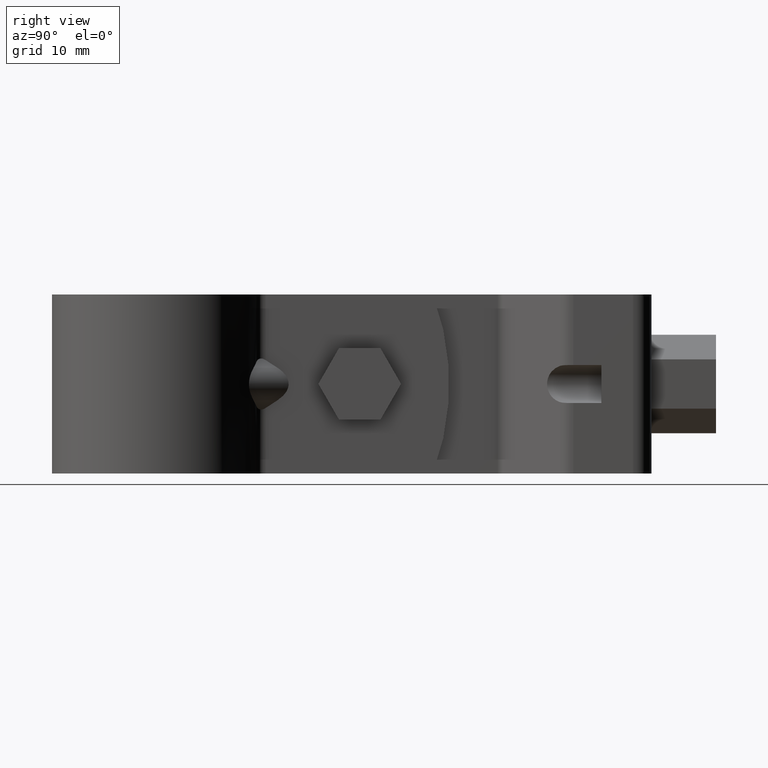
[diagram: clean part render]
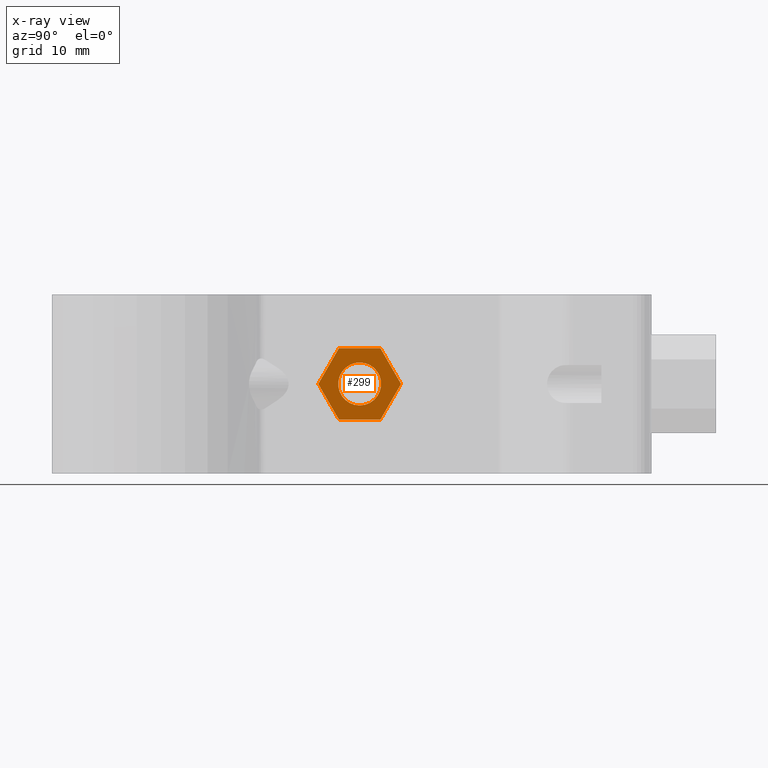
[diagram: x-ray — body ghosted, one internal face saturated and labeled with its STEP entity id]
A machine part, right view, then the same camera in x-ray: the body is ghosted and one INTERNAL B-rep face — a face not visible from any outside direction — is saturated and labeled: STEP entity #299.
In plain terms, the highlighted planar face has unit normal (-1, 0, 0).
Its self-contained STEP definition (entity closure, byte-faithful):
#299 = ADVANCED_FACE( '', ( #460, #461 ), #462, .T. );
#460 = FACE_OUTER_BOUND( '', #732, .T. );
#461 = FACE_BOUND( '', #733, .T. );
#462 = PLANE( '', #734 );
#732 = EDGE_LOOP( '', ( #1206, #1207, #1208, #1209, #1210, #1211 ) );
#733 = EDGE_LOOP( '', ( #1212 ) );
#734 = AXIS2_PLACEMENT_3D( '', #1213, #1214, #1215 );
#1206 = ORIENTED_EDGE( '', *, *, #2022, .F. );
#1207 = ORIENTED_EDGE( '', *, *, #2023, .F. );
#1208 = ORIENTED_EDGE( '', *, *, #2024, .F. );
#1209 = ORIENTED_EDGE( '', *, *, #2025, .F. );
#1210 = ORIENTED_EDGE( '', *, *, #2026, .F. );
#1211 = ORIENTED_EDGE( '', *, *, #2027, .F. );
#1212 = ORIENTED_EDGE( '', *, *, #2028, .T. );
#1213 = CARTESIAN_POINT( '', ( 5.10000000000000, 19.4027139264324, -5.00000000000000 ) );
#1214 = DIRECTION( '', ( -1.00000000000000, 6.06692130572647E-017, 0.000000000000000 ) );
#1215 = DIRECTION( '', ( 0.000000000000000, 0.000000000000000, 1.00000000000000 ) );
#2022 = EDGE_CURVE( '', #2399, #2400, #2401, .T. );
#2023 = EDGE_CURVE( '', #2402, #2399, #2403, .T. );
#2024 = EDGE_CURVE( '', #2404, #2402, #2405, .T. );
#2025 = EDGE_CURVE( '', #2406, #2404, #2407, .T. );
#2026 = EDGE_CURVE( '', #2408, #2406, #2409, .T. );
#2027 = EDGE_CURVE( '', #2400, #2408, #2410, .T. );
#2028 = EDGE_CURVE( '', #2411, #2411, #2412, .F. );
#2399 = VERTEX_POINT( '', #3045 );
#2400 = VERTEX_POINT( '', #3046 );
#2401 = LINE( '', #3047, #3048 );
#2402 = VERTEX_POINT( '', #3049 );
#2403 = LINE( '', #3050, #3051 );
#2404 = VERTEX_POINT( '', #3052 );
#2405 = LINE( '', #3053, #3054 );
#2406 = VERTEX_POINT( '', #3055 );
#2407 = LINE( '', #3056, #3057 );
#2408 = VERTEX_POINT( '', #3058 );
#2409 = LINE( '', #3059, #3060 );
#2410 = LINE( '', #3061, #3062 );
#2411 = VERTEX_POINT( '', #3063 );
#2412 = CIRCLE( '', #3064, 3.00000000000000 );
#3045 = CARTESIAN_POINT( '', ( 5.10000000000000, 25.1762166183287, -5.00000000000000 ) );
#3046 = CARTESIAN_POINT( '', ( 5.10000000000000, 30.9497193102250, -5.00000000000000 ) );
#3047 = CARTESIAN_POINT( '', ( 5.10000000000000, 25.1762166183287, -5.00000000000000 ) );
#3048 = VECTOR( '', #3839, 1000.00000000000 );
#3049 = CARTESIAN_POINT( '', ( 5.10000000000000, 22.2894652723806, -8.67361737988404E-016 ) );
#3050 = CARTESIAN_POINT( '', ( 5.10000000000000, 22.2894652723806, 1.93178474057610E-016 ) );
#3051 = VECTOR( '', #3840, 1000.00000000000 );
#3052 = CARTESIAN_POINT( '', ( 5.10000000000000, 25.1762166183287, 5.00000000000000 ) );
#3053 = CARTESIAN_POINT( '', ( 5.10000000000000, 25.1762166183287, 5.00000000000000 ) );
#3054 = VECTOR( '', #3841, 1000.00000000000 );
#3055 = CARTESIAN_POINT( '', ( 5.10000000000000, 30.9497193102250, 5.00000000000000 ) );
#3056 = CARTESIAN_POINT( '', ( 5.10000000000000, 30.9497193102250, 5.00000000000000 ) );
#3057 = VECTOR( '', #3842, 1000.00000000000 );
#3058 = CARTESIAN_POINT( '', ( 5.10000000000000, 33.8364706561731, -8.67361737988404E-016 ) );
#3059 = CARTESIAN_POINT( '', ( 5.10000000000000, 33.8364706561731, -1.22087514200374E-015 ) );
#3060 = VECTOR( '', #3843, 1000.00000000000 );
#3061 = CARTESIAN_POINT( '', ( 5.10000000000000, 30.9497193102250, -5.00000000000000 ) );
#3062 = VECTOR( '', #3844, 1000.00000000000 );
#3063 = CARTESIAN_POINT( '', ( 5.10000000000000, 28.0629679642768, 3.00000000000000 ) );
#3064 = AXIS2_PLACEMENT_3D( '', #3845, #3846, #3847 );
#3839 = DIRECTION( '', ( 6.06692130572647E-017, 1.00000000000000, -3.00462919747432E-016 ) );
#3840 = DIRECTION( '', ( 3.03346065286324E-017, 0.500000000000000, -0.866025403784439 ) );
#3841 = DIRECTION( '', ( -3.03346065286324E-017, -0.500000000000000, -0.866025403784439 ) );
#3842 = DIRECTION( '', ( -6.06692130572647E-017, -1.00000000000000, 0.000000000000000 ) );
#3843 = DIRECTION( '', ( -3.03346065286324E-017, -0.500000000000000, 0.866025403784439 ) );
#3844 = DIRECTION( '', ( 3.03346065286324E-017, 0.500000000000000, 0.866025403784439 ) );
#3845 = CARTESIAN_POINT( '', ( 5.10000000000000, 28.0629679642768, -8.67361737988404E-016 ) );
#3846 = DIRECTION( '', ( -1.00000000000000, 6.06692130572647E-017, 0.000000000000000 ) );
#3847 = DIRECTION( '', ( 0.000000000000000, 0.000000000000000, 1.00000000000000 ) );